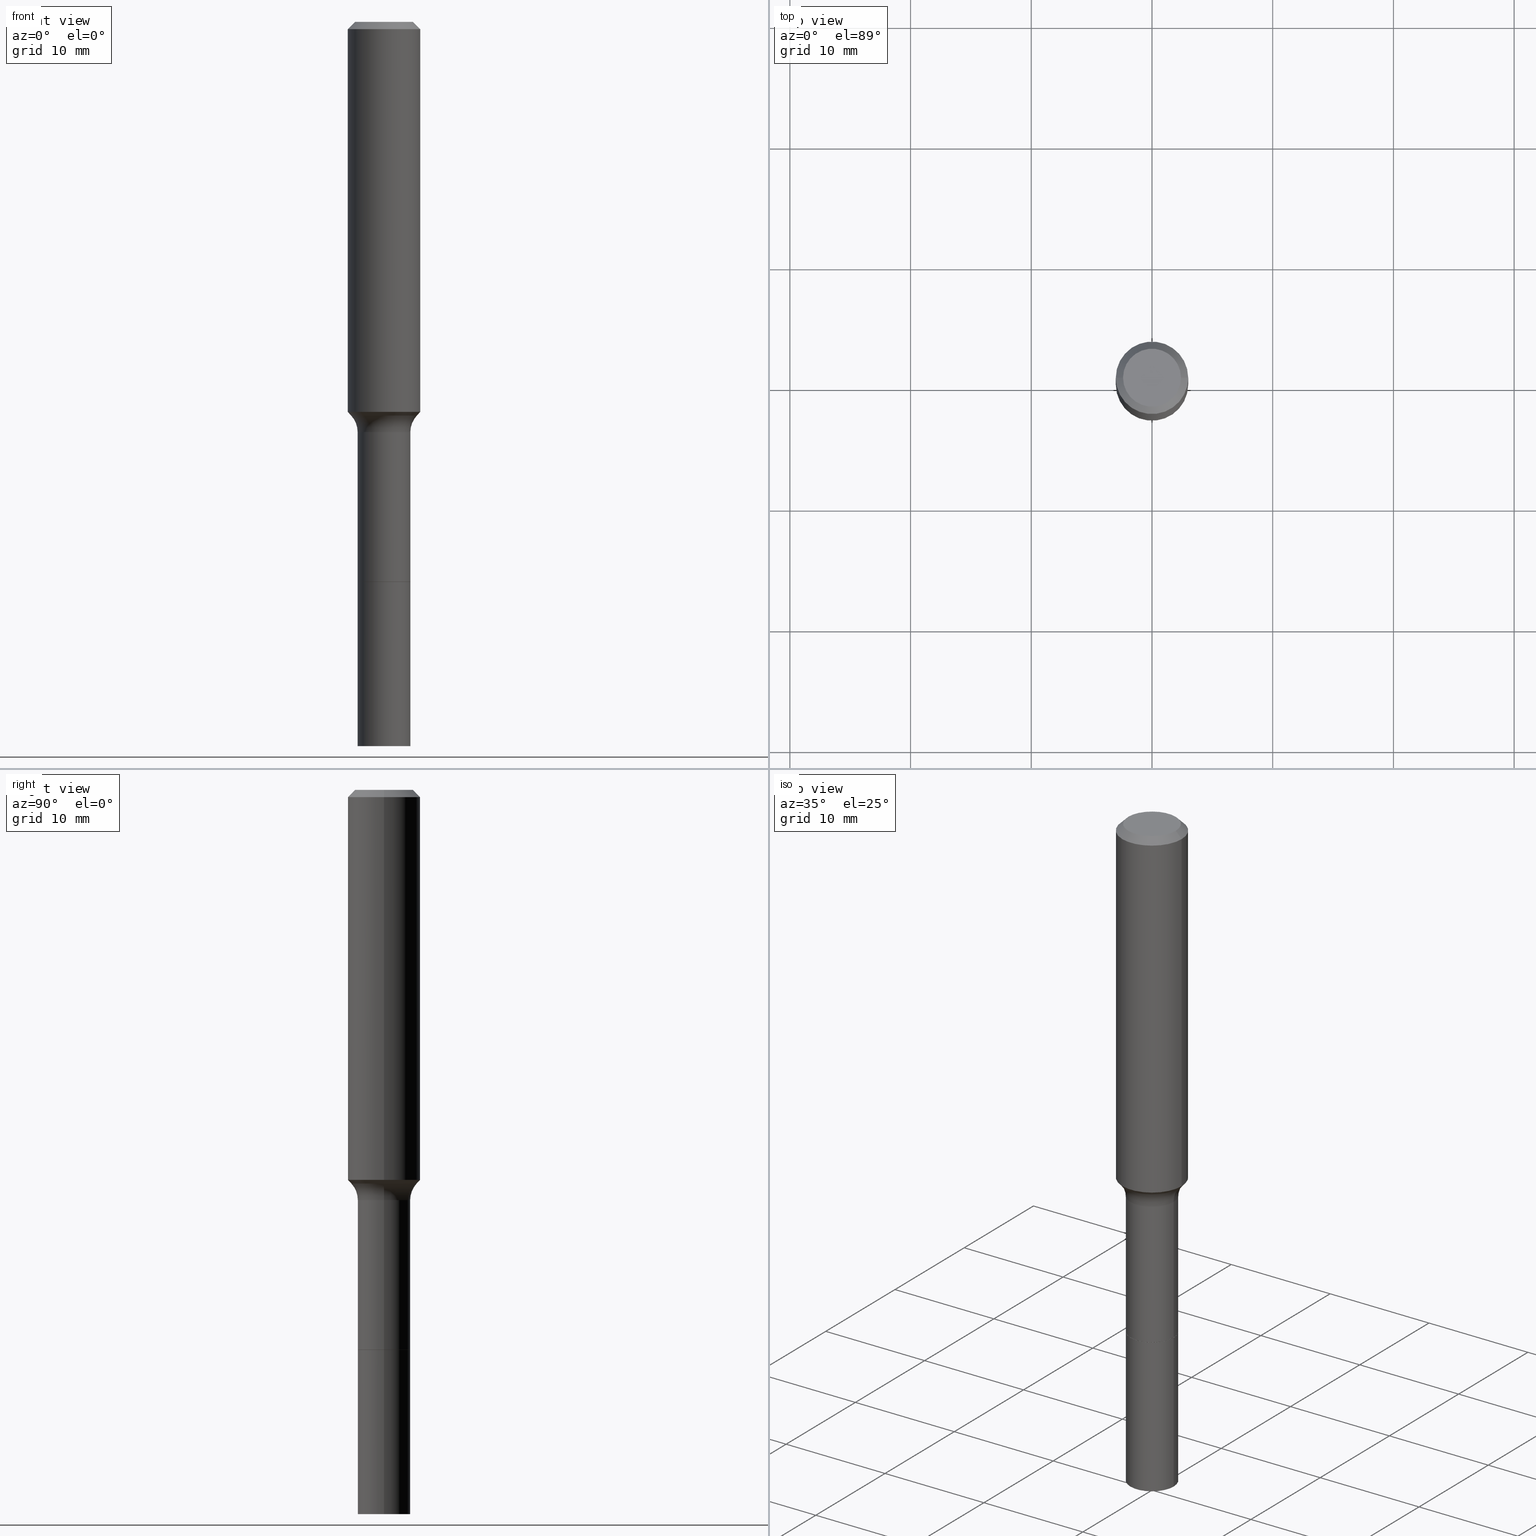
[diagram: canonical four-view strip — front | top / right | iso, engineering-drawing reading convention]
A machine part, canonical four-view strip (front | top / right | iso — engineering-drawing reading convention). The complete STEP part file that produces these views, byte-faithful:
ISO-10303-21;
HEADER;
FILE_DESCRIPTION (( 'STEP AP203' ),
    '1' );
FILE_NAME ('58811.STEP',
    '2025-04-01T15:25:10',
    ( '' ),
    ( '' ),
    'SwSTEP 2.0',
    'SolidWorks 2024',
    '' );
FILE_SCHEMA (( 'CONFIG_CONTROL_DESIGN' ));
ENDSEC;

DATA;
#1 = DIRECTION ( 'NONE',  ( 0.7071067811865460184, -7.319954787623251312E-15, -0.7071067811865490160 ) ) ;
#2 = CYLINDRICAL_SURFACE ( 'NONE', #323, 0.08594999999999995699 ) ;
#3 = DIRECTION ( 'NONE',  ( -0.6819983600624963671, 7.399397606724278688E-15, 0.7313537016191724582 ) ) ;
#4 = PERSON_AND_ORGANIZATION ( #320, #435 ) ;
#5 = CIRCLE ( 'NONE', #360, 0.08594999999999998475 ) ;
#6 = CONICAL_SURFACE ( 'NONE', #63, 0.1180999999999999966, 0.7853981633974461696 ) ;
#7 = DIRECTION ( 'NONE',  ( -2.445468806185136597E-29, 3.491481338843145583E-15, 1.000000000000000000 ) ) ;
#8 = DIRECTION ( 'NONE',  ( 1.000000000000000000, -6.982962677686266711E-15, 0.000000000000000000 ) ) ;
#9 = CARTESIAN_POINT ( 'NONE',  ( 4.465915133855296004E-29, -6.376143220995352070E-15, -1.826200000000000045 ) ) ;
#10 = PERSON_AND_ORGANIZATION_ROLE ( 'creator' ) ;
#11 = APPROVAL ( #50, 'UNSPECIFIED' ) ;
#12 = CARTESIAN_POINT ( 'NONE',  ( -0.08595000000000005413, -5.765431739609545378E-15, -1.826200000000000045 ) ) ;
#13 = COORDINATED_UNIVERSAL_TIME_OFFSET ( 5, 0, .BEHIND. ) ;
#14 = VECTOR ( 'NONE', #215, 39.37007874015748143 ) ;
#15 = AXIS2_PLACEMENT_3D ( 'NONE', #95, #289, #412 ) ;
#16 = CIRCLE ( 'NONE', #114, 0.1074417038704664068 ) ;
#17 = FACE_OUTER_BOUND ( 'NONE', #185, .T. ) ;
#18 = PERSON_AND_ORGANIZATION ( #320, #435 ) ;
#19 = CIRCLE ( 'NONE', #307, 0.08000000000000007105 ) ;
#20 = VERTEX_POINT ( 'NONE', #230 ) ;
#21 = FACE_OUTER_BOUND ( 'NONE', #225, .T. ) ;
#22 = ORIENTED_EDGE ( 'NONE', *, *, #395, .F. ) ;
#23 = EDGE_CURVE ( 'NONE', #411, #332, #16, .T. ) ;
#24 = DIRECTION ( 'NONE',  ( -2.445468806185136597E-29, 3.491481338843145583E-15, 1.000000000000000000 ) ) ;
#25 = ADVANCED_FACE ( 'NONE', ( #449 ), #373, .T. ) ;
#26 = ORIENTED_EDGE ( 'NONE', *, *, #354, .F. ) ;
#27 = ORIENTED_EDGE ( 'NONE', *, *, #317, .F. ) ;
#28 = DIRECTION ( 'NONE',  ( -1.000000000000000000, 6.982962677686265922E-15, -4.876176775795935793E-29 ) ) ;
#29 = EDGE_CURVE ( 'NONE', #40, #234, #198, .T. ) ;
#30 = ORIENTED_EDGE ( 'NONE', *, *, #440, .F. ) ;
#31 = EDGE_CURVE ( 'NONE', #189, #40, #83, .T. ) ;
#32 = DIRECTION ( 'NONE',  ( 1.000000000000000000, -6.982962677686265922E-15, 4.876176775795935793E-29 ) ) ;
#33 = ORIENTED_EDGE ( 'NONE', *, *, #116, .T. ) ;
#34 = CIRCLE ( 'NONE', #480, 0.08594999999999998475 ) ;
#35 = AXIS2_PLACEMENT_3D ( 'NONE', #184, #145, #486 ) ;
#36 = CARTESIAN_POINT ( 'NONE',  ( -0.08594999999999998475, -4.912637422597106570E-15, -1.825700000000000101 ) ) ;
#37 = CARTESIAN_POINT ( 'NONE',  ( 3.139101899204768444E-29, -4.481805563857509473E-15, -1.283640131194999867 ) ) ;
#38 = CONICAL_SURFACE ( 'NONE', #305, 0.08544999999999998430, 0.7853981633975507526 ) ;
#39 = MANIFOLD_SOLID_BREP ( 'Body-Move/Copy2[2]', #363 ) ;
#40 = VERTEX_POINT ( 'NONE', #117 ) ;
#41 = EDGE_LOOP ( 'NONE', ( #393, #146, #76, #107 ) ) ;
#42 =( CONVERSION_BASED_UNIT ( 'INCH', #77 ) LENGTH_UNIT ( ) NAMED_UNIT ( #45 ) );
#43 = CYLINDRICAL_SURFACE ( 'NONE', #275, 0.1181000000000000660 ) ;
#44 =( NAMED_UNIT ( * ) PLANE_ANGLE_UNIT ( ) SI_UNIT ( $, .RADIAN. ) );
#45 = DIMENSIONAL_EXPONENTS ( 1.000000000000000000, 0.000000000000000000, 0.000000000000000000, 0.000000000000000000, 0.000000000000000000, 0.000000000000000000, 0.000000000000000000 ) ;
#46 = DIRECTION ( 'NONE',  ( 1.000000000000000000, -6.982962677686267499E-15, 4.875432709231658792E-29 ) ) ;
#47 = ADVANCED_FACE ( 'NONE', ( #355 ), #43, .T. ) ;
#48 = DIRECTION ( 'NONE',  ( -2.445468806185136597E-29, 3.491481338843145583E-15, 1.000000000000000000 ) ) ;
#49 = DIRECTION ( 'NONE',  ( 2.445468806185136597E-29, -3.491481338843145583E-15, -1.000000000000000000 ) ) ;
#50 = APPROVAL_STATUS ( 'not_yet_approved' ) ;
#51 = ADVANCED_FACE ( 'NONE', ( #197 ), #2, .T. ) ;
#52 = DIRECTION ( 'NONE',  ( 1.000000000000000000, -6.982962677686267499E-15, 0.000000000000000000 ) ) ;
#53 = PERSON_AND_ORGANIZATION ( #320, #435 ) ;
#54 = FACE_OUTER_BOUND ( 'NONE', #41, .T. ) ;
#55 = DATE_TIME_ROLE ( 'classification_date' ) ;
#56 = EDGE_LOOP ( 'NONE', ( #22, #382, #345, #153 ) ) ;
#57 = CARTESIAN_POINT ( 'NONE',  ( -0.08544999999999998430, -5.768984453288346277E-15, -1.826200000000000045 ) ) ;
#58 = EDGE_LOOP ( 'NONE', ( #254, #138 ) ) ;
#59 = AXIS2_PLACEMENT_3D ( 'NONE', #256, #421, #496 ) ;
#60 = DIRECTION ( 'NONE',  ( -2.445468806185136597E-29, 3.491481338843145583E-15, 1.000000000000000000 ) ) ;
#61 = AXIS2_PLACEMENT_3D ( 'NONE', #280, #181, #342 ) ;
#62 = DIRECTION ( 'NONE',  ( -2.445468806185136597E-29, 3.491481338843145583E-15, 1.000000000000000000 ) ) ;
#63 = AXIS2_PLACEMENT_3D ( 'NONE', #283, #86, #206 ) ;
#64 = CYLINDRICAL_SURFACE ( 'NONE', #424, 0.08595000000000005413 ) ;
#65 = CARTESIAN_POINT ( 'NONE',  ( 0.08595000000000012352, -8.847762860762413853E-15, -2.362200000000000077 ) ) ;
#66 = ORIENTED_EDGE ( 'NONE', *, *, #29, .F. ) ;
#67 = EDGE_CURVE ( 'NONE', #234, #20, #468, .T. ) ;
#68 = CONICAL_SURFACE ( 'NONE', #253, 0.08544999999999998430, 0.7853981633975507526 ) ;
#69 = CARTESIAN_POINT ( 'NONE',  ( -0.1181000000000000660, 8.391509709326787887E-16, -5.809262341591047287E-30 ) ) ;
#70 = VECTOR ( 'NONE', #216, 39.37007874015748143 ) ;
#71 = ORIENTED_EDGE ( 'NONE', *, *, #194, .T. ) ;
#72 = ORIENTED_EDGE ( 'NONE', *, *, #111, .F. ) ;
#73 = VERTEX_POINT ( 'NONE', #397 ) ;
#74 = AXIS2_PLACEMENT_3D ( 'NONE', #377, #173, #419 ) ;
#75 = AXIS2_PLACEMENT_3D ( 'NONE', #356, #124, #322 ) ;
#76 = ORIENTED_EDGE ( 'NONE', *, *, #109, .T. ) ;
#77 = LENGTH_MEASURE_WITH_UNIT ( LENGTH_MEASURE( 0.02539999999999999897 ), #235 );
#78 = CC_DESIGN_PERSON_AND_ORGANIZATION_ASSIGNMENT ( #131, #10, ( #509 ) ) ;
#79 = ORIENTED_EDGE ( 'NONE', *, *, #210, .F. ) ;
#80 = DIRECTION ( 'NONE',  ( 1.000000000000000000, -6.982962677686265922E-15, 0.000000000000000000 ) ) ;
#81 = DIRECTION ( 'NONE',  ( -2.445468806185136597E-29, 3.491481338843145583E-15, 1.000000000000000000 ) ) ;
#82 = ADVANCED_FACE ( 'NONE', ( #287 ), #504, .T. ) ;
#83 = CIRCLE ( 'NONE', #148, 0.09447999999999998066 ) ;
#84 = LINE ( 'NONE', #239, #99 ) ;
#85 = CALENDAR_DATE ( 2025, 1, 4 ) ;
#86 = DIRECTION ( 'NONE',  ( 2.445468806185136597E-29, -3.491481338843145583E-15, -1.000000000000000000 ) ) ;
#87 = APPROVAL_DATE_TIME ( #284, #11 ) ;
#88 = DIRECTION ( 'NONE',  ( -2.445468806185136597E-29, 3.491481338843145583E-15, 1.000000000000000000 ) ) ;
#89 = DATE_TIME_ROLE ( 'creation_date' ) ;
#90 = CIRCLE ( 'NONE', #74, 0.08595000000000012352 ) ;
#91 = CARTESIAN_POINT ( 'NONE',  ( 3.111151112027893846E-29, -4.441899247495096830E-15, -1.272210507923510647 ) ) ;
#92 = CARTESIAN_POINT ( 'NONE',  ( 0.08594999999999992923, -5.272485969787030971E-15, -1.338200000000000056 ) ) ;
#93 = APPROVAL_DATE_TIME ( #245, #158 ) ;
#94 = ORIENTED_EDGE ( 'NONE', *, *, #298, .T. ) ;
#95 = CARTESIAN_POINT ( 'NONE',  ( 5.776197320209328408E-31, -8.246878922347560526E-17, -0.02362000000000014435 ) ) ;
#96 = DIRECTION ( 'NONE',  ( -2.445468806185136597E-29, 3.491481338843145583E-15, 1.000000000000000000 ) ) ;
#97 = ORIENTED_EDGE ( 'NONE', *, *, #23, .T. ) ;
#98 = CYLINDRICAL_SURFACE ( 'NONE', #59, 0.08594999999999995699 ) ;
#99 = VECTOR ( 'NONE', #3, 39.37007874015748143 ) ;
#100 = ORIENTED_EDGE ( 'NONE', *, *, #495, .F. ) ;
#101 = DIRECTION ( 'NONE',  ( 2.438088387897960049E-29, -3.491481338843145188E-15, -1.000000000000000000 ) ) ;
#102 = PLANE ( 'NONE',  #452 ) ;
#103 = ORIENTED_EDGE ( 'NONE', *, *, #395, .T. ) ;
#104 = VECTOR ( 'NONE', #334, 39.37007874015748143 ) ;
#105 = APPROVAL_PERSON_ORGANIZATION ( #4, #158, #163 ) ;
#106 = VERTEX_POINT ( 'NONE', #325 ) ;
#107 = ORIENTED_EDGE ( 'NONE', *, *, #314, .F. ) ;
#108 = LINE ( 'NONE', #132, #195 ) ;
#109 = EDGE_CURVE ( 'NONE', #309, #155, #489, .T. ) ;
#110 = EDGE_LOOP ( 'NONE', ( #26, #94, #191, #113 ) ) ;
#111 = EDGE_CURVE ( 'NONE', #411, #257, #19, .T. ) ;
#112 = PLANE ( 'NONE',  #351 ) ;
#113 = ORIENTED_EDGE ( 'NONE', *, *, #476, .F. ) ;
#114 = AXIS2_PLACEMENT_3D ( 'NONE', #37, #478, #244 ) ;
#115 = CARTESIAN_POINT ( 'NONE',  ( 0.000000000000000000, 0.000000000000000000, 0.000000000000000000 ) ) ;
#116 = EDGE_CURVE ( 'NONE', #73, #106, #512, .T. ) ;
#117 = CARTESIAN_POINT ( 'NONE',  ( 0.09447999999999998066, -7.704367267948738690E-16, -3.085620075131172158E-17 ) ) ;
#118 = AXIS2_PLACEMENT_3D ( 'NONE', #295, #461, #505 ) ;
#119 = LOCAL_TIME ( 11, 25, 10.00000000000000000, #358 ) ;
#120 = DIRECTION ( 'NONE',  ( -2.445468806185136597E-29, 3.491481338843145583E-15, 1.000000000000000000 ) ) ;
#121 = PERSON_AND_ORGANIZATION_ROLE ( 'design_owner' ) ;
#122 = AXIS2_PLACEMENT_3D ( 'NONE', #91, #453, #130 ) ;
#123 = DIRECTION ( 'NONE',  ( 1.000000000000000000, -6.982962677686266711E-15, 4.876176775795936353E-29 ) ) ;
#124 = DIRECTION ( 'NONE',  ( 0.000000000000000000, 0.000000000000000000, 1.000000000000000000 ) ) ;
#125 = DIRECTION ( 'NONE',  ( 7.105427357601001859E-15, 1.000000000000000000, -3.491481338843145583E-15 ) ) ;
#126 = APPROVAL_ROLE ( '' ) ;
#127 = CARTESIAN_POINT ( 'NONE',  ( 0.1659499999999999031, -5.831122984001931835E-15, -1.338200000000000056 ) ) ;
#128 = PERSON_AND_ORGANIZATION ( #320, #435 ) ;
#129 = AXIS2_PLACEMENT_3D ( 'NONE', #127, #366, #291 ) ;
#130 = DIRECTION ( 'NONE',  ( 1.000000000000000000, -6.982962677686264344E-15, 0.000000000000000000 ) ) ;
#131 = PERSON_AND_ORGANIZATION ( #320, #435 ) ;
#132 = CARTESIAN_POINT ( 'NONE',  ( 0.1074417038704664068, -5.232066972011996434E-15, -1.283640131194999867 ) ) ;
#133 = ADVANCED_FACE ( 'NONE', ( #401 ), #487, .T. ) ;
#134 = PRODUCT ( '58811', '58811', '', ( #174 ) ) ;
#135 = FACE_OUTER_BOUND ( 'NONE', #313, .T. ) ;
#136 = CC_DESIGN_PERSON_AND_ORGANIZATION_ASSIGNMENT ( #406, #330, ( #263 ) ) ;
#137 = FACE_OUTER_BOUND ( 'NONE', #264, .T. ) ;
#138 = ORIENTED_EDGE ( 'NONE', *, *, #314, .T. ) ;
#139 =( GEOMETRIC_REPRESENTATION_CONTEXT ( 3 ) GLOBAL_UNCERTAINTY_ASSIGNED_CONTEXT ( ( #308 ) ) GLOBAL_UNIT_ASSIGNED_CONTEXT ( ( #42, #44, #484 ) ) REPRESENTATION_CONTEXT ( 'NONE', 'WORKASPACE' ) );
#140 = VECTOR ( 'NONE', #394, 39.37007874015748143 ) ;
#141 = DIRECTION ( 'NONE',  ( -2.445468806185136597E-29, 3.491481338843145583E-15, 1.000000000000000000 ) ) ;
#142 = ADVANCED_FACE ( 'NONE', ( #278 ), #6, .T. ) ;
#143 = DIRECTION ( 'NONE',  ( -2.445468806185136597E-29, 3.491481338843145583E-15, 1.000000000000000000 ) ) ;
#144 = ORIENTED_EDGE ( 'NONE', *, *, #267, .F. ) ;
#145 = DIRECTION ( 'NONE',  ( -2.445468806185136597E-29, 3.491481338843145583E-15, 1.000000000000000000 ) ) ;
#146 = ORIENTED_EDGE ( 'NONE', *, *, #353, .T. ) ;
#147 = CARTESIAN_POINT ( 'NONE',  ( -0.08594999999999995699, 6.107114813858058042E-16, -4.227824710074089488E-30 ) ) ;
#148 = AXIS2_PLACEMENT_3D ( 'NONE', #203, #159, #46 ) ;
#149 = ORIENTED_EDGE ( 'NONE', *, *, #440, .T. ) ;
#150 = AXIS2_PLACEMENT_3D ( 'NONE', #441, #404, #80 ) ;
#151 = DIRECTION ( 'NONE',  ( 1.000000000000000000, -6.982962677686269077E-15, 4.883557194083113462E-29 ) ) ;
#152 = EDGE_CURVE ( 'NONE', #411, #349, #84, .T. ) ;
#153 = ORIENTED_EDGE ( 'NONE', *, *, #482, .F. ) ;
#154 = DIRECTION ( 'NONE',  ( -2.438088387897960049E-29, 3.491481338843145188E-15, 1.000000000000000000 ) ) ;
#155 = VERTEX_POINT ( 'NONE', #321 ) ;
#156 = DIRECTION ( 'NONE',  ( 1.000000000000000000, -6.982962677686265922E-15, 0.000000000000000000 ) ) ;
#157 = EDGE_CURVE ( 'NONE', #388, #301, #390, .T. ) ;
#158 = APPROVAL ( #167, 'UNSPECIFIED' ) ;
#159 = DIRECTION ( 'NONE',  ( -2.445468806185136597E-29, 3.491481338843145583E-15, 1.000000000000000000 ) ) ;
#160 = DIRECTION ( 'NONE',  ( -1.000000000000000000, 6.982962677686266711E-15, 0.000000000000000000 ) ) ;
#161 = CIRCLE ( 'NONE', #463, 0.08595000000000012352 ) ;
#162 = DIRECTION ( 'NONE',  ( 1.000000000000000000, -6.982962677686266711E-15, 0.000000000000000000 ) ) ;
#163 = APPROVAL_ROLE ( '' ) ;
#164 = DIRECTION ( 'NONE',  ( -2.445468806185136597E-29, 3.491481338843145583E-15, 1.000000000000000000 ) ) ;
#165 = ADVANCED_FACE ( 'NONE', ( #357 ), #374, .T. ) ;
#166 = DIRECTION ( 'NONE',  ( 1.000000000000000000, -6.982962677686261977E-15, 0.000000000000000000 ) ) ;
#167 = APPROVAL_STATUS ( 'not_yet_approved' ) ;
#168 = APPLICATION_CONTEXT ( 'configuration controlled 3d designs of mechanical parts and assemblies' ) ;
#169 = CARTESIAN_POINT ( 'NONE',  ( 0.08594999999999998475, -6.974583122473064793E-15, -1.825700000000000101 ) ) ;
#170 = CALENDAR_DATE ( 2025, 1, 4 ) ;
#171 = AXIS2_PLACEMENT_3D ( 'NONE', #176, #248, #460 ) ;
#172 = ADVANCED_FACE ( 'NONE', ( #237 ), #196, .T. ) ;
#173 = DIRECTION ( 'NONE',  ( -2.445468806185136597E-29, 3.491481338843145583E-15, 1.000000000000000000 ) ) ;
#174 = MECHANICAL_CONTEXT ( 'NONE', #261, 'mechanical' ) ;
#175 = ORIENTED_EDGE ( 'NONE', *, *, #152, .F. ) ;
#176 = CARTESIAN_POINT ( 'NONE',  ( 3.139101899204768444E-29, -4.481805563857509473E-15, -1.283640131194999867 ) ) ;
#177 = DIRECTION ( 'NONE',  ( -2.445468806185136597E-29, 3.491481338843145583E-15, 1.000000000000000000 ) ) ;
#178 = CARTESIAN_POINT ( 'NONE',  ( 3.772893820736570314E-46, -5.386692455541008845E-32, -1.542810037565835988E-17 ) ) ;
#179 = EDGE_LOOP ( 'NONE', ( #27, #477, #269, #220 ) ) ;
#180 = DIRECTION ( 'NONE',  ( -2.445468806185136877E-29, 3.491481338843145188E-15, 1.000000000000000000 ) ) ;
#181 = DIRECTION ( 'NONE',  ( -2.445468806185136597E-29, 3.491481338843145583E-15, 1.000000000000000000 ) ) ;
#182 = CARTESIAN_POINT ( 'NONE',  ( -0.1181000000000001493, -3.602748276562417844E-15, -1.272210507923510647 ) ) ;
#183 = ORIENTED_EDGE ( 'NONE', *, *, #353, .F. ) ;
#184 = CARTESIAN_POINT ( 'NONE',  ( 4.464692399452204323E-29, -6.374397480325931355E-15, -1.825700000000000101 ) ) ;
#185 = EDGE_LOOP ( 'NONE', ( #433, #467, #422, #144 ) ) ;
#186 = DIRECTION ( 'NONE',  ( -2.445468806185136877E-29, 3.491481338843145188E-15, 1.000000000000000000 ) ) ;
#187 = ORIENTED_EDGE ( 'NONE', *, *, #267, .T. ) ;
#188 = AXIS2_PLACEMENT_3D ( 'NONE', #474, #340, #151 ) ;
#189 = VERTEX_POINT ( 'NONE', #470 ) ;
#190 = AXIS2_PLACEMENT_3D ( 'NONE', #290, #405, #52 ) ;
#191 = ORIENTED_EDGE ( 'NONE', *, *, #493, .T. ) ;
#192 = EDGE_CURVE ( 'NONE', #106, #73, #218, .T. ) ;
#193 = EDGE_LOOP ( 'NONE', ( #511, #213 ) ) ;
#194 = EDGE_CURVE ( 'NONE', #368, #349, #418, .T. ) ;
#195 = VECTOR ( 'NONE', #208, 39.37007874015748143 ) ;
#196 = PLANE ( 'NONE',  #445 ) ;
#197 = FACE_OUTER_BOUND ( 'NONE', #56, .T. ) ;
#198 = LINE ( 'NONE', #281, #336 ) ;
#199 = SECURITY_CLASSIFICATION_LEVEL ( 'unclassified' ) ;
#200 = ADVANCED_FACE ( 'NONE', ( #21 ), #38, .T. ) ;
#201 = AXIS2_PLACEMENT_3D ( 'NONE', #499, #141, #300 ) ;
#202 = CIRCLE ( 'NONE', #15, 0.1180999999999999966 ) ;
#203 = CARTESIAN_POINT ( 'NONE',  ( 7.545787641473140628E-46, -1.077338491108201769E-31, -3.085620075131671975E-17 ) ) ;
#204 = PERSON_AND_ORGANIZATION_ROLE ( 'design_supplier' ) ;
#205 = VECTOR ( 'NONE', #488, 39.37007874015748143 ) ;
#206 = DIRECTION ( 'NONE',  ( -1.000000000000000000, 6.982962677686266711E-15, 0.000000000000000000 ) ) ;
#207 = COORDINATED_UNIVERSAL_TIME_OFFSET ( 5, 0, .BEHIND. ) ;
#208 = DIRECTION ( 'NONE',  ( 0.6819983600624963671, -2.208861293262454109E-15, 0.7313537016191724582 ) ) ;
#209 = ADVANCED_BREP_SHAPE_REPRESENTATION ( '58811', ( #381, #39, #75 ), #139 ) ;
#210 = EDGE_CURVE ( 'NONE', #271, #257, #255, .T. ) ;
#211 = CARTESIAN_POINT ( 'NONE',  ( 4.465915133855296004E-29, -6.376143220995352070E-15, -1.826200000000000045 ) ) ;
#212 = CALENDAR_DATE ( 2025, 1, 4 ) ;
#213 = ORIENTED_EDGE ( 'NONE', *, *, #192, .F. ) ;
#214 = EDGE_CURVE ( 'NONE', #309, #481, #90, .T. ) ;
#215 = DIRECTION ( 'NONE',  ( -0.7071067811866199593, 7.493145998870616062E-15, 0.7071067811864750752 ) ) ;
#216 = DIRECTION ( 'NONE',  ( -2.445468806185136877E-29, 3.491481338843145188E-15, 1.000000000000000000 ) ) ;
#217 = AXIS2_PLACEMENT_3D ( 'NONE', #483, #49, #160 ) ;
#218 = CIRCLE ( 'NONE', #286, 0.08544999999999998430 ) ;
#219 = DIRECTION ( 'NONE',  ( -1.000000000000000000, 6.982962677686265922E-15, -4.876176775795935793E-29 ) ) ;
#220 = ORIENTED_EDGE ( 'NONE', *, *, #157, .F. ) ;
#221 = DIRECTION ( 'NONE',  ( -1.000000000000000000, 6.982962677686265922E-15, -4.876176775795935793E-29 ) ) ;
#222 = CARTESIAN_POINT ( 'NONE',  ( -0.08594999999999992923, -4.912637422597108147E-15, -1.338200000000000056 ) ) ;
#223 = EDGE_LOOP ( 'NONE', ( #66, #227, #260, #473 ) ) ;
#224 = LINE ( 'NONE', #513, #273 ) ;
#225 = EDGE_LOOP ( 'NONE', ( #33, #455, #311, #251 ) ) ;
#226 = LINE ( 'NONE', #69, #380 ) ;
#227 = ORIENTED_EDGE ( 'NONE', *, *, #31, .F. ) ;
#228 = ADVANCED_FACE ( 'NONE', ( #137 ), #252, .F. ) ;
#229 = CARTESIAN_POINT ( 'NONE',  ( 0.1181000000000001493, -5.266587139729846670E-15, -1.272210507923510647 ) ) ;
#230 = CARTESIAN_POINT ( 'NONE',  ( -0.1180999999999999966, -1.423033047426606960E-15, -0.02362000000000014435 ) ) ;
#231 = AXIS2_PLACEMENT_3D ( 'NONE', #333, #60, #8 ) ;
#232 = CC_DESIGN_APPROVAL ( #11, ( #509 ) ) ;
#233 = DIRECTION ( 'NONE',  ( -2.445468806185136877E-29, 3.491481338843145188E-15, 1.000000000000000000 ) ) ;
#234 = VERTEX_POINT ( 'NONE', #415 ) ;
#235 =( LENGTH_UNIT ( ) NAMED_UNIT ( * ) SI_UNIT ( $, .METRE. ) );
#236 = EDGE_LOOP ( 'NONE', ( #302, #183 ) ) ;
#237 = FACE_OUTER_BOUND ( 'NONE', #236, .T. ) ;
#238 = DIRECTION ( 'NONE',  ( -1.000000000000000000, 7.105427357601005014E-15, 0.000000000000000000 ) ) ;
#239 = CARTESIAN_POINT ( 'NONE',  ( -0.1074417038704664068, -3.718386341829031525E-15, -1.283640131194999867 ) ) ;
#240 = COORDINATED_UNIVERSAL_TIME_OFFSET ( 5, 0, .BEHIND. ) ;
#241 = CC_DESIGN_DATE_AND_TIME_ASSIGNMENT ( #328, #55, ( #431 ) ) ;
#242 = DIRECTION ( 'NONE',  ( 1.000000000000000000, -6.982962677686261977E-15, 0.000000000000000000 ) ) ;
#243 = CC_DESIGN_APPROVAL ( #318, ( #431 ) ) ;
#244 = DIRECTION ( 'NONE',  ( 1.000000000000000000, -6.982962677686265922E-15, 0.000000000000000000 ) ) ;
#245 = DATE_AND_TIME ( #170, #398 ) ;
#246 = CYLINDRICAL_SURFACE ( 'NONE', #423, 0.08595000000000005413 ) ;
#247 = ADVANCED_FACE ( 'NONE', ( #299 ), #246, .T. ) ;
#248 = DIRECTION ( 'NONE',  ( -2.445468806185136597E-29, 3.491481338843145583E-15, 1.000000000000000000 ) ) ;
#249 = PRODUCT_DEFINITION_SHAPE ( 'NONE', 'NONE',  #509 ) ;
#250 = DIRECTION ( 'NONE',  ( 1.000000000000000000, -6.982962677686266711E-15, 0.000000000000000000 ) ) ;
#251 = ORIENTED_EDGE ( 'NONE', *, *, #518, .F. ) ;
#252 = PLANE ( 'NONE',  #451 ) ;
#253 = AXIS2_PLACEMENT_3D ( 'NONE', #312, #425, #274 ) ;
#254 = ORIENTED_EDGE ( 'NONE', *, *, #379, .T. ) ;
#255 = CIRCLE ( 'NONE', #344, 0.08594999999999992923 ) ;
#256 = CARTESIAN_POINT ( 'NONE',  ( 0.000000000000000000, 0.000000000000000000, 0.000000000000000000 ) ) ;
#257 = VERTEX_POINT ( 'NONE', #222 ) ;
#258 = CC_DESIGN_DATE_AND_TIME_ASSIGNMENT ( #408, #89, ( #509 ) ) ;
#259 = LINE ( 'NONE', #12, #104 ) ;
#260 = ORIENTED_EDGE ( 'NONE', *, *, #371, .T. ) ;
#261 = APPLICATION_CONTEXT ( 'configuration controlled 3d designs of mechanical parts and assemblies' ) ;
#262 = LINE ( 'NONE', #147, #434 ) ;
#263 = PRODUCT_DEFINITION_FORMATION_WITH_SPECIFIED_SOURCE ( 'ANY', '', #134, .NOT_KNOWN. ) ;
#264 = EDGE_LOOP ( 'NONE', ( #392, #149 ) ) ;
#265 = CC_DESIGN_SECURITY_CLASSIFICATION ( #431, ( #263 ) ) ;
#266 = CIRCLE ( 'NONE', #231, 0.08594999999999992923 ) ;
#267 = EDGE_CURVE ( 'NONE', #332, #271, #432, .T. ) ;
#268 = ORIENTED_EDGE ( 'NONE', *, *, #456, .T. ) ;
#269 = ORIENTED_EDGE ( 'NONE', *, *, #518, .T. ) ;
#270 = FACE_OUTER_BOUND ( 'NONE', #193, .T. ) ;
#271 = VERTEX_POINT ( 'NONE', #92 ) ;
#272 = CC_DESIGN_APPROVAL ( #158, ( #263 ) ) ;
#273 = VECTOR ( 'NONE', #348, 39.37007874015748143 ) ;
#274 = DIRECTION ( 'NONE',  ( 1.000000000000000000, -6.982962677686267499E-15, 0.000000000000000000 ) ) ;
#275 = AXIS2_PLACEMENT_3D ( 'NONE', #361, #7, #123 ) ;
#276 = ORIENTED_EDGE ( 'NONE', *, *, #67, .F. ) ;
#277 = ADVANCED_FACE ( 'NONE', ( #54 ), #64, .T. ) ;
#278 = FACE_OUTER_BOUND ( 'NONE', #223, .T. ) ;
#279 = APPLICATION_PROTOCOL_DEFINITION ( 'international standard', 'config_control_design', 1994, #261 ) ;
#280 = CARTESIAN_POINT ( 'NONE',  ( 7.545787641473140628E-46, -1.077338491108201769E-31, -3.085620075131671975E-17 ) ) ;
#281 = CARTESIAN_POINT ( 'NONE',  ( 0.1180999999999999966, -8.926936027602933910E-16, -0.02362000000000014435 ) ) ;
#282 = CIRCLE ( 'NONE', #201, 0.1181000000000001493 ) ;
#283 = CARTESIAN_POINT ( 'NONE',  ( 5.776197320209328408E-31, -8.246878922347560526E-17, -0.02362000000000014435 ) ) ;
#284 = DATE_AND_TIME ( #85, #464 ) ;
#285 = EDGE_CURVE ( 'NONE', #481, #378, #259, .T. ) ;
#286 = AXIS2_PLACEMENT_3D ( 'NONE', #465, #62, #376 ) ;
#287 = FACE_OUTER_BOUND ( 'NONE', #306, .T. ) ;
#288 = APPLICATION_PROTOCOL_DEFINITION ( 'international standard', 'config_control_design', 1994, #168 ) ;
#289 = DIRECTION ( 'NONE',  ( -2.445468806185136597E-29, 3.491481338843145583E-15, 1.000000000000000000 ) ) ;
#290 = CARTESIAN_POINT ( 'NONE',  ( 4.465915133855296004E-29, -6.376143220995352070E-15, -1.826200000000000045 ) ) ;
#291 = DIRECTION ( 'NONE',  ( 1.000000000000000000, -6.982962677686265922E-15, 0.000000000000000000 ) ) ;
#292 = APPROVAL_STATUS ( 'not_yet_approved' ) ;
#293 = CARTESIAN_POINT ( 'NONE',  ( 4.465915133855296004E-29, -6.376143220995352070E-15, -1.826200000000000045 ) ) ;
#294 = ORIENTED_EDGE ( 'NONE', *, *, #67, .T. ) ;
#295 = CARTESIAN_POINT ( 'NONE',  ( 3.272526356436949336E-29, -4.672300327639896745E-15, -1.338200000000000056 ) ) ;
#296 = ORIENTED_EDGE ( 'NONE', *, *, #152, .T. ) ;
#297 = APPROVAL_PERSON_ORGANIZATION ( #128, #318, #454 ) ;
#298 = EDGE_CURVE ( 'NONE', #349, #368, #282, .T. ) ;
#299 = FACE_OUTER_BOUND ( 'NONE', #503, .T. ) ;
#300 = DIRECTION ( 'NONE',  ( 1.000000000000000000, -6.982962677686264344E-15, 0.000000000000000000 ) ) ;
#301 = VERTEX_POINT ( 'NONE', #169 ) ;
#302 = ORIENTED_EDGE ( 'NONE', *, *, #214, .F. ) ;
#303 = ADVANCED_FACE ( 'NONE', ( #329 ), #98, .T. ) ;
#304 = CARTESIAN_POINT ( 'NONE',  ( 5.776686413970529753E-29, -8.247577218615279626E-15, -2.362200000000000077 ) ) ;
#305 = AXIS2_PLACEMENT_3D ( 'NONE', #293, #491, #407 ) ;
#306 = EDGE_LOOP ( 'NONE', ( #517, #296, #514, #438 ) ) ;
#307 = AXIS2_PLACEMENT_3D ( 'NONE', #319, #125, #238 ) ;
#308 = UNCERTAINTY_MEASURE_WITH_UNIT (LENGTH_MEASURE( 1.000000000000000082E-05 ), #42, 'distance_accuracy_value', 'NONE');
#309 = VERTEX_POINT ( 'NONE', #65 ) ;
#310 = CARTESIAN_POINT ( 'NONE',  ( 0.08594999999999995699, -6.001856421471342262E-16, 4.191073938796604437E-30 ) ) ;
#311 = ORIENTED_EDGE ( 'NONE', *, *, #439, .F. ) ;
#312 = CARTESIAN_POINT ( 'NONE',  ( 4.465915133855296004E-29, -6.376143220995352070E-15, -1.826200000000000045 ) ) ;
#313 = EDGE_LOOP ( 'NONE', ( #72, #341, #187, #506 ) ) ;
#314 = EDGE_CURVE ( 'NONE', #378, #155, #34, .T. ) ;
#315 = CARTESIAN_POINT ( 'NONE',  ( 4.464692399452204323E-29, -6.374397480325931355E-15, -1.825700000000000101 ) ) ;
#316 = CARTESIAN_POINT ( 'NONE',  ( 0.000000000000000000, 0.000000000000000000, 0.000000000000000000 ) ) ;
#317 = EDGE_CURVE ( 'NONE', #106, #388, #327, .T. ) ;
#318 = APPROVAL ( #292, 'UNSPECIFIED' ) ;
#319 = CARTESIAN_POINT ( 'NONE',  ( -0.1659499999999999031, -3.493154657646011372E-15, -1.338200000000000056 ) ) ;
#320 = PERSON ( 'UNSPECIFIED', 'UNSPECIFIED', 'UNSPECIFIED', ('UNSPECIFIED'), ('UNSPECIFIED'), ('UNSPECIFIED') ) ;
#321 = CARTESIAN_POINT ( 'NONE',  ( 0.08594999999999998475, -6.976328863142486296E-15, -1.826200000000000045 ) ) ;
#322 = DIRECTION ( 'NONE',  ( 1.000000000000000000, 0.000000000000000000, 0.000000000000000000 ) ) ;
#323 = AXIS2_PLACEMENT_3D ( 'NONE', #115, #88, #446 ) ;
#324 = AXIS2_PLACEMENT_3D ( 'NONE', #315, #48, #242 ) ;
#325 = CARTESIAN_POINT ( 'NONE',  ( -0.08544999999999998430, -5.766335226114235076E-15, -1.826200000000000045 ) ) ;
#326 = LINE ( 'NONE', #490, #70 ) ;
#327 = LINE ( 'NONE', #57, #14 ) ;
#328 = DATE_AND_TIME ( #362, #462 ) ;
#329 = FACE_OUTER_BOUND ( 'NONE', #429, .T. ) ;
#330 = PERSON_AND_ORGANIZATION_ROLE ( 'creator' ) ;
#331 = ORIENTED_EDGE ( 'NONE', *, *, #285, .T. ) ;
#332 = VERTEX_POINT ( 'NONE', #370 ) ;
#333 = CARTESIAN_POINT ( 'NONE',  ( 3.272526356436949336E-29, -4.672300327639896745E-15, -1.338200000000000056 ) ) ;
#334 = DIRECTION ( 'NONE',  ( -2.445468806185136877E-29, 3.491481338843145188E-15, 1.000000000000000000 ) ) ;
#335 = DIRECTION ( 'NONE',  ( 1.000000000000000000, -6.982962677686268288E-15, 0.000000000000000000 ) ) ;
#336 = VECTOR ( 'NONE', #1, 39.37007874015748143 ) ;
#337 = ADVANCED_FACE ( 'NONE', ( #17 ), #369, .F. ) ;
#338 = ORIENTED_EDGE ( 'NONE', *, *, #439, .T. ) ;
#339 = ADVANCED_FACE ( 'NONE', ( #135 ), #414, .F. ) ;
#340 = DIRECTION ( 'NONE',  ( -2.445468806185136597E-29, 3.491481338843145583E-15, 1.000000000000000000 ) ) ;
#341 = ORIENTED_EDGE ( 'NONE', *, *, #458, .F. ) ;
#342 = DIRECTION ( 'NONE',  ( 1.000000000000000000, -6.982962677686267499E-15, 4.875432709231658792E-29 ) ) ;
#343 = CARTESIAN_POINT ( 'NONE',  ( -0.08594999999999998475, -6.701148738419508368E-15, -1.826200000000000045 ) ) ;
#344 = AXIS2_PLACEMENT_3D ( 'NONE', #498, #96, #250 ) ;
#345 = ORIENTED_EDGE ( 'NONE', *, *, #495, .T. ) ;
#346 = AXIS2_PLACEMENT_3D ( 'NONE', #443, #81, #156 ) ;
#347 = ORIENTED_EDGE ( 'NONE', *, *, #493, .F. ) ;
#348 = DIRECTION ( 'NONE',  ( -0.7071067811865460184, 2.468850131082241283E-15, -0.7071067811865490160 ) ) ;
#349 = VERTEX_POINT ( 'NONE', #182 ) ;
#350 = ORIENTED_EDGE ( 'NONE', *, *, #379, .F. ) ;
#351 = AXIS2_PLACEMENT_3D ( 'NONE', #437, #383, #28 ) ;
#352 = CARTESIAN_POINT ( 'NONE',  ( 5.776686413970529753E-29, -8.247577218615279626E-15, -2.362200000000000077 ) ) ;
#353 = EDGE_CURVE ( 'NONE', #481, #309, #161, .T. ) ;
#354 = EDGE_CURVE ( 'NONE', #349, #20, #226, .T. ) ;
#355 = FACE_OUTER_BOUND ( 'NONE', #110, .T. ) ;
#356 = CARTESIAN_POINT ( 'NONE',  ( 0.000000000000000000, 0.000000000000000000, 0.000000000000000000 ) ) ;
#357 = FACE_OUTER_BOUND ( 'NONE', #500, .T. ) ;
#358 = COORDINATED_UNIVERSAL_TIME_OFFSET ( 5, 0, .BEHIND. ) ;
#359 = LOCAL_TIME ( 11, 25, 10.00000000000000000, #13 ) ;
#360 = AXIS2_PLACEMENT_3D ( 'NONE', #510, #472, #387 ) ;
#361 = CARTESIAN_POINT ( 'NONE',  ( 0.000000000000000000, 0.000000000000000000, 0.000000000000000000 ) ) ;
#362 = CALENDAR_DATE ( 2025, 1, 4 ) ;
#363 = CLOSED_SHELL ( 'NONE', ( #200, #25, #133, #82, #337, #303, #51, #339, #165, #47, #142, #228, #389, #413 ) ) ;
#364 = CARTESIAN_POINT ( 'NONE',  ( 0.08595000000000005413, -6.976328863142487085E-15, -1.826200000000000045 ) ) ;
#365 = PERSON_AND_ORGANIZATION ( #320, #435 ) ;
#366 = DIRECTION ( 'NONE',  ( -6.982962677686266711E-15, -1.000000000000000000, 3.491481338843145583E-15 ) ) ;
#367 = DATE_AND_TIME ( #212, #119 ) ;
#368 = VERTEX_POINT ( 'NONE', #229 ) ;
#369 = TOROIDAL_SURFACE ( 'NONE', #118, 0.1659499999999999031, 0.08000000000000007105 ) ;
#370 = CARTESIAN_POINT ( 'NONE',  ( 0.1074417038704664068, -5.232066972011994856E-15, -1.283640131194999867 ) ) ;
#371 = EDGE_CURVE ( 'NONE', #189, #20, #224, .T. ) ;
#372 = LINE ( 'NONE', #310, #466 ) ;
#373 = CONICAL_SURFACE ( 'NONE', #217, 0.1180999999999999966, 0.7853981633974461696 ) ;
#374 = CONICAL_SURFACE ( 'NONE', #150, 0.1074417038704664068, 0.7504915783575588639 ) ;
#375 = CC_DESIGN_PERSON_AND_ORGANIZATION_ASSIGNMENT ( #53, #459, ( #431 ) ) ;
#376 = DIRECTION ( 'NONE',  ( 1.000000000000000000, -6.982962677686267499E-15, 0.000000000000000000 ) ) ;
#377 = CARTESIAN_POINT ( 'NONE',  ( 5.776686413970529753E-29, -8.247577218615279626E-15, -2.362200000000000077 ) ) ;
#378 = VERTEX_POINT ( 'NONE', #343 ) ;
#379 = EDGE_CURVE ( 'NONE', #155, #378, #5, .T. ) ;
#380 = VECTOR ( 'NONE', #186, 39.37007874015748143 ) ;
#381 = MANIFOLD_SOLID_BREP ( 'Body-Move/Copy2[1]', #436 ) ;
#382 = ORIENTED_EDGE ( 'NONE', *, *, #157, .T. ) ;
#383 = DIRECTION ( 'NONE',  ( 2.438088387897960049E-29, -3.491481338843145188E-15, -1.000000000000000000 ) ) ;
#384 = EDGE_LOOP ( 'NONE', ( #30, #508, #294, #428 ) ) ;
#385 = CARTESIAN_POINT ( 'NONE',  ( 4.465915133855296004E-29, -6.376143220995352070E-15, -1.826200000000000045 ) ) ;
#386 = ORIENTED_EDGE ( 'NONE', *, *, #354, .T. ) ;
#387 = DIRECTION ( 'NONE',  ( 1.000000000000000000, -6.982962677686261977E-15, 0.000000000000000000 ) ) ;
#388 = VERTEX_POINT ( 'NONE', #36 ) ;
#389 = ADVANCED_FACE ( 'NONE', ( #270 ), #102, .F. ) ;
#390 = CIRCLE ( 'NONE', #324, 0.08594999999999998475 ) ;
#391 = CARTESIAN_POINT ( 'NONE',  ( -0.1074417038704664068, -3.718386341829031525E-15, -1.283640131194999867 ) ) ;
#392 = ORIENTED_EDGE ( 'NONE', *, *, #31, .T. ) ;
#393 = ORIENTED_EDGE ( 'NONE', *, *, #285, .F. ) ;
#394 = DIRECTION ( 'NONE',  ( 0.7071067811866199593, -2.468850131083015945E-15, 0.7071067811864750752 ) ) ;
#395 = EDGE_CURVE ( 'NONE', #388, #257, #262, .T. ) ;
#396 = DESIGN_CONTEXT ( 'detailed design', #168, 'design' ) ;
#397 = CARTESIAN_POINT ( 'NONE',  ( 0.08544999999999998430, -6.972837381803644078E-15, -1.826200000000000045 ) ) ;
#398 = LOCAL_TIME ( 11, 25, 10.00000000000000000, #240 ) ;
#399 = CC_DESIGN_PERSON_AND_ORGANIZATION_ASSIGNMENT ( #365, #121, ( #134 ) ) ;
#400 = CIRCLE ( 'NONE', #61, 0.09447999999999998066 ) ;
#401 = FACE_OUTER_BOUND ( 'NONE', #416, .T. ) ;
#402 = DIRECTION ( 'NONE',  ( 1.000000000000000000, -6.982962677686266711E-15, 4.876176775795936353E-29 ) ) ;
#403 = PERSON_AND_ORGANIZATION ( #320, #435 ) ;
#404 = DIRECTION ( 'NONE',  ( -2.445468806185136597E-29, 3.491481338843145583E-15, 1.000000000000000000 ) ) ;
#405 = DIRECTION ( 'NONE',  ( -2.445468806185136597E-29, 3.491481338843145583E-15, 1.000000000000000000 ) ) ;
#406 = PERSON_AND_ORGANIZATION ( #320, #435 ) ;
#407 = DIRECTION ( 'NONE',  ( 1.000000000000000000, -6.982962677686267499E-15, 0.000000000000000000 ) ) ;
#408 = DATE_AND_TIME ( #448, #359 ) ;
#409 = DIRECTION ( 'NONE',  ( -2.445468806185136597E-29, 3.491481338843145583E-15, 1.000000000000000000 ) ) ;
#410 = SHAPE_DEFINITION_REPRESENTATION ( #249, #209 ) ;
#411 = VERTEX_POINT ( 'NONE', #391 ) ;
#412 = DIRECTION ( 'NONE',  ( 1.000000000000000000, -6.982962677686266711E-15, 0.000000000000000000 ) ) ;
#413 = ADVANCED_FACE ( 'NONE', ( #515 ), #68, .T. ) ;
#414 = TOROIDAL_SURFACE ( 'NONE', #188, 0.1659499999999999031, 0.08000000000000007105 ) ;
#415 = CARTESIAN_POINT ( 'NONE',  ( 0.1180999999999999966, -9.071566814582237199E-16, -0.02362000000000014435 ) ) ;
#416 = EDGE_LOOP ( 'NONE', ( #71, #386, #276, #347 ) ) ;
#417 = LINE ( 'NONE', #442, #140 ) ;
#418 = CIRCLE ( 'NONE', #122, 0.1181000000000001493 ) ;
#419 = DIRECTION ( 'NONE',  ( 1.000000000000000000, -6.982962677686262766E-15, 0.000000000000000000 ) ) ;
#420 = ADVANCED_FACE ( 'NONE', ( #479 ), #112, .F. ) ;
#421 = DIRECTION ( 'NONE',  ( -2.445468806185136597E-29, 3.491481338843145583E-15, 1.000000000000000000 ) ) ;
#422 = ORIENTED_EDGE ( 'NONE', *, *, #482, .T. ) ;
#423 = AXIS2_PLACEMENT_3D ( 'NONE', #457, #177, #335 ) ;
#424 = AXIS2_PLACEMENT_3D ( 'NONE', #211, #24, #502 ) ;
#425 = DIRECTION ( 'NONE',  ( -2.445468806185136597E-29, 3.491481338843145583E-15, 1.000000000000000000 ) ) ;
#426 = CIRCLE ( 'NONE', #35, 0.08594999999999998475 ) ;
#427 = ORIENTED_EDGE ( 'NONE', *, *, #214, .T. ) ;
#428 = ORIENTED_EDGE ( 'NONE', *, *, #371, .F. ) ;
#429 = EDGE_LOOP ( 'NONE', ( #338, #103, #79, #100 ) ) ;
#430 = PRODUCT_RELATED_PRODUCT_CATEGORY ( 'detail', '', ( #134 ) ) ;
#431 = SECURITY_CLASSIFICATION ( '', '', #199 ) ;
#432 = CIRCLE ( 'NONE', #129, 0.08000000000000007105 ) ;
#433 = ORIENTED_EDGE ( 'NONE', *, *, #23, .F. ) ;
#434 = VECTOR ( 'NONE', #233, 39.37007874015748143 ) ;
#435 = ORGANIZATION ( 'UNSPECIFIED', 'UNSPECIFIED', '' ) ;
#436 = CLOSED_SHELL ( 'NONE', ( #247, #172, #277, #420 ) ) ;
#437 = CARTESIAN_POINT ( 'NONE',  ( 4.465915133855296004E-29, -6.376143220995352070E-15, -1.826200000000000045 ) ) ;
#438 = ORIENTED_EDGE ( 'NONE', *, *, #456, .F. ) ;
#439 = EDGE_CURVE ( 'NONE', #301, #388, #426, .T. ) ;
#440 = EDGE_CURVE ( 'NONE', #40, #189, #400, .T. ) ;
#441 = CARTESIAN_POINT ( 'NONE',  ( 3.139101899204768444E-29, -4.481805563857509473E-15, -1.283640131194999867 ) ) ;
#442 = CARTESIAN_POINT ( 'NONE',  ( 0.08544999999999998430, -6.972837381803644078E-15, -1.826200000000000045 ) ) ;
#443 = CARTESIAN_POINT ( 'NONE',  ( 3.139101899204768444E-29, -4.481805563857509473E-15, -1.283640131194999867 ) ) ;
#444 = AXIS2_PLACEMENT_3D ( 'NONE', #447, #164, #162 ) ;
#445 = AXIS2_PLACEMENT_3D ( 'NONE', #352, #485, #221 ) ;
#446 = DIRECTION ( 'NONE',  ( 1.000000000000000000, -6.982962677686265922E-15, 4.876176775795935232E-29 ) ) ;
#447 = CARTESIAN_POINT ( 'NONE',  ( 5.776197320209328408E-31, -8.246878922347560526E-17, -0.02362000000000014435 ) ) ;
#448 = CALENDAR_DATE ( 2025, 1, 4 ) ;
#449 = FACE_OUTER_BOUND ( 'NONE', #384, .T. ) ;
#450 = CARTESIAN_POINT ( 'NONE',  ( -0.08595000000000012352, -6.701148738419506790E-15, -2.362200000000000077 ) ) ;
#451 = AXIS2_PLACEMENT_3D ( 'NONE', #178, #101, #219 ) ;
#452 = AXIS2_PLACEMENT_3D ( 'NONE', #385, #154, #32 ) ;
#453 = DIRECTION ( 'NONE',  ( -2.445468806185136597E-29, 3.491481338843145583E-15, 1.000000000000000000 ) ) ;
#454 = APPROVAL_ROLE ( '' ) ;
#455 = ORIENTED_EDGE ( 'NONE', *, *, #317, .T. ) ;
#456 = EDGE_CURVE ( 'NONE', #332, #368, #108, .T. ) ;
#457 = CARTESIAN_POINT ( 'NONE',  ( 4.465915133855296004E-29, -6.376143220995352070E-15, -1.826200000000000045 ) ) ;
#458 = EDGE_CURVE ( 'NONE', #332, #411, #494, .T. ) ;
#459 = PERSON_AND_ORGANIZATION_ROLE ( 'classification_officer' ) ;
#460 = DIRECTION ( 'NONE',  ( 1.000000000000000000, -6.982962677686265922E-15, 0.000000000000000000 ) ) ;
#461 = DIRECTION ( 'NONE',  ( -2.445468806185136597E-29, 3.491481338843145583E-15, 1.000000000000000000 ) ) ;
#462 = LOCAL_TIME ( 11, 25, 10.00000000000000000, #492 ) ;
#463 = AXIS2_PLACEMENT_3D ( 'NONE', #304, #143, #507 ) ;
#464 = LOCAL_TIME ( 11, 25, 10.00000000000000000, #207 ) ;
#465 = CARTESIAN_POINT ( 'NONE',  ( 4.465915133855296004E-29, -6.376143220995352070E-15, -1.826200000000000045 ) ) ;
#466 = VECTOR ( 'NONE', #180, 39.37007874015748143 ) ;
#467 = ORIENTED_EDGE ( 'NONE', *, *, #111, .T. ) ;
#468 = CIRCLE ( 'NONE', #444, 0.1180999999999999966 ) ;
#469 = AXIS2_PLACEMENT_3D ( 'NONE', #316, #120, #402 ) ;
#470 = CARTESIAN_POINT ( 'NONE',  ( -0.09447999999999998066, 7.009847083995354710E-16, -3.085620075132147757E-17 ) ) ;
#471 = CC_DESIGN_PERSON_AND_ORGANIZATION_ASSIGNMENT ( #403, #204, ( #263 ) ) ;
#472 = DIRECTION ( 'NONE',  ( -2.445468806185136597E-29, 3.491481338843145583E-15, 1.000000000000000000 ) ) ;
#473 = ORIENTED_EDGE ( 'NONE', *, *, #476, .T. ) ;
#474 = CARTESIAN_POINT ( 'NONE',  ( 3.272526356436949336E-29, -4.672300327639896745E-15, -1.338200000000000056 ) ) ;
#475 = ORIENTED_EDGE ( 'NONE', *, *, #109, .F. ) ;
#476 = EDGE_CURVE ( 'NONE', #20, #234, #202, .T. ) ;
#477 = ORIENTED_EDGE ( 'NONE', *, *, #192, .T. ) ;
#478 = DIRECTION ( 'NONE',  ( -2.445468806185136597E-29, 3.491481338843145583E-15, 1.000000000000000000 ) ) ;
#479 = FACE_OUTER_BOUND ( 'NONE', #58, .T. ) ;
#480 = AXIS2_PLACEMENT_3D ( 'NONE', #9, #409, #166 ) ;
#481 = VERTEX_POINT ( 'NONE', #450 ) ;
#482 = EDGE_CURVE ( 'NONE', #257, #271, #266, .T. ) ;
#483 = CARTESIAN_POINT ( 'NONE',  ( 5.776197320209328408E-31, -8.246878922347560526E-17, -0.02362000000000014435 ) ) ;
#484 =( NAMED_UNIT ( * ) SI_UNIT ( $, .STERADIAN. ) SOLID_ANGLE_UNIT ( ) );
#485 = DIRECTION ( 'NONE',  ( 2.438088387897960049E-29, -3.491481338843145188E-15, -1.000000000000000000 ) ) ;
#486 = DIRECTION ( 'NONE',  ( 1.000000000000000000, -6.982962677686261977E-15, 0.000000000000000000 ) ) ;
#487 = CYLINDRICAL_SURFACE ( 'NONE', #469, 0.1181000000000000660 ) ;
#488 = DIRECTION ( 'NONE',  ( -2.445468806185136877E-29, 3.491481338843145188E-15, 1.000000000000000000 ) ) ;
#489 = LINE ( 'NONE', #364, #205 ) ;
#490 = CARTESIAN_POINT ( 'NONE',  ( 0.1181000000000000660, -8.246878922347485584E-16, 5.758764772215003944E-30 ) ) ;
#491 = DIRECTION ( 'NONE',  ( -2.445468806185136597E-29, 3.491481338843145583E-15, 1.000000000000000000 ) ) ;
#492 = COORDINATED_UNIVERSAL_TIME_OFFSET ( 5, 0, .BEHIND. ) ;
#493 = EDGE_CURVE ( 'NONE', #368, #234, #326, .T. ) ;
#494 = CIRCLE ( 'NONE', #171, 0.1074417038704664068 ) ;
#495 = EDGE_CURVE ( 'NONE', #301, #271, #372, .T. ) ;
#496 = DIRECTION ( 'NONE',  ( 1.000000000000000000, -6.982962677686265922E-15, 4.876176775795935232E-29 ) ) ;
#497 = APPROVAL_DATE_TIME ( #367, #318 ) ;
#498 = CARTESIAN_POINT ( 'NONE',  ( 3.272526356436949336E-29, -4.672300327639896745E-15, -1.338200000000000056 ) ) ;
#499 = CARTESIAN_POINT ( 'NONE',  ( 3.111151112027893846E-29, -4.441899247495096830E-15, -1.272210507923510647 ) ) ;
#500 = EDGE_LOOP ( 'NONE', ( #175, #97, #268, #516 ) ) ;
#501 = APPROVAL_PERSON_ORGANIZATION ( #18, #11, #126 ) ;
#502 = DIRECTION ( 'NONE',  ( 1.000000000000000000, -6.982962677686268288E-15, 0.000000000000000000 ) ) ;
#503 = EDGE_LOOP ( 'NONE', ( #427, #331, #350, #475 ) ) ;
#504 = CONICAL_SURFACE ( 'NONE', #346, 0.1074417038704664068, 0.7504915783575588639 ) ;
#505 = DIRECTION ( 'NONE',  ( 1.000000000000000000, -6.982962677686269077E-15, 4.883557194083113462E-29 ) ) ;
#506 = ORIENTED_EDGE ( 'NONE', *, *, #210, .T. ) ;
#507 = DIRECTION ( 'NONE',  ( 1.000000000000000000, -6.982962677686262766E-15, 0.000000000000000000 ) ) ;
#508 = ORIENTED_EDGE ( 'NONE', *, *, #29, .T. ) ;
#509 = PRODUCT_DEFINITION ( 'UNKNOWN', '', #263, #396 ) ;
#510 = CARTESIAN_POINT ( 'NONE',  ( 4.465915133855296004E-29, -6.376143220995352070E-15, -1.826200000000000045 ) ) ;
#511 = ORIENTED_EDGE ( 'NONE', *, *, #116, .F. ) ;
#512 = CIRCLE ( 'NONE', #190, 0.08544999999999998430 ) ;
#513 = CARTESIAN_POINT ( 'NONE',  ( -0.1180999999999999966, 7.422191030112725094E-16, -0.02362000000000014435 ) ) ;
#514 = ORIENTED_EDGE ( 'NONE', *, *, #194, .F. ) ;
#515 = FACE_OUTER_BOUND ( 'NONE', #179, .T. ) ;
#516 = ORIENTED_EDGE ( 'NONE', *, *, #298, .F. ) ;
#517 = ORIENTED_EDGE ( 'NONE', *, *, #458, .T. ) ;
#518 = EDGE_CURVE ( 'NONE', #73, #301, #417, .T. ) ;
ENDSEC;
END-ISO-10303-21;
